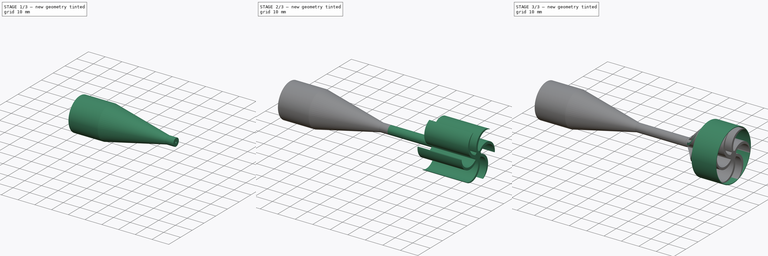
[diagram: build sequence overview — one tinted view per stage of 3, left to right]
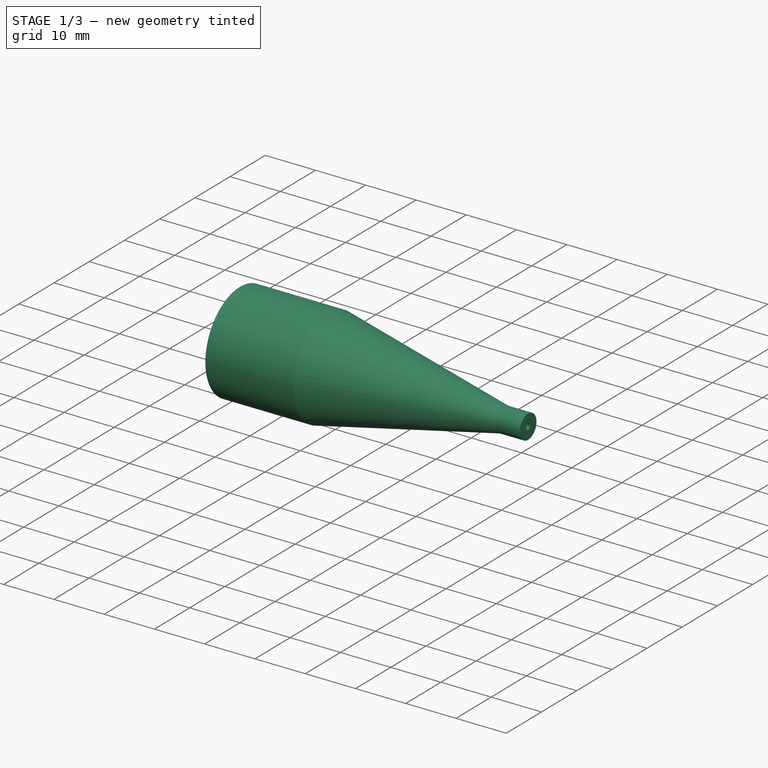
[diagram: stage 1 of 3 — iso view after this stage's code; geometry added in this stage tinted green]
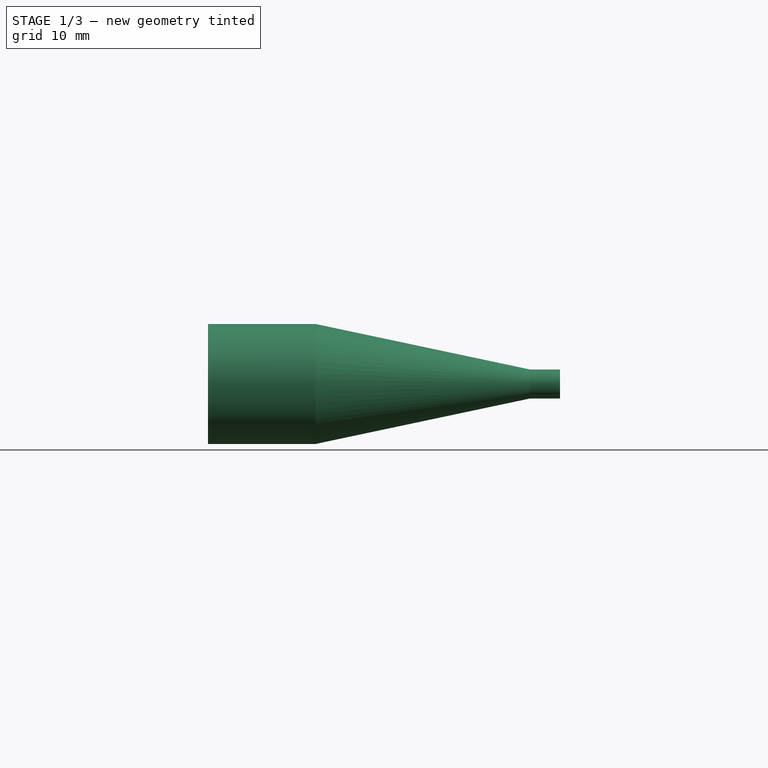
[diagram: stage 1 of 3 — front view after this stage's code; geometry added in this stage tinted green]
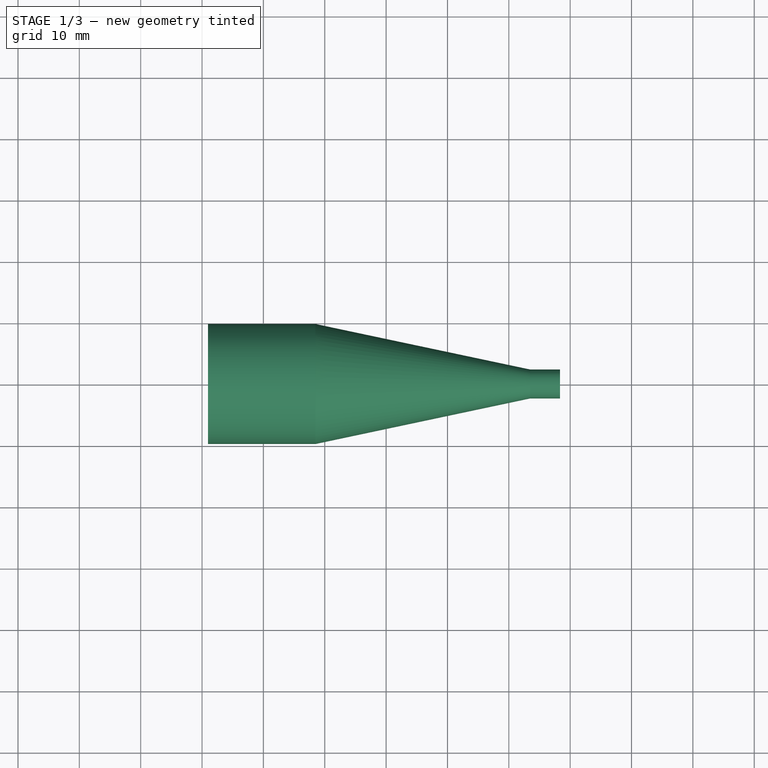
[diagram: stage 1 of 3 — top view after this stage's code; geometry added in this stage tinted green]
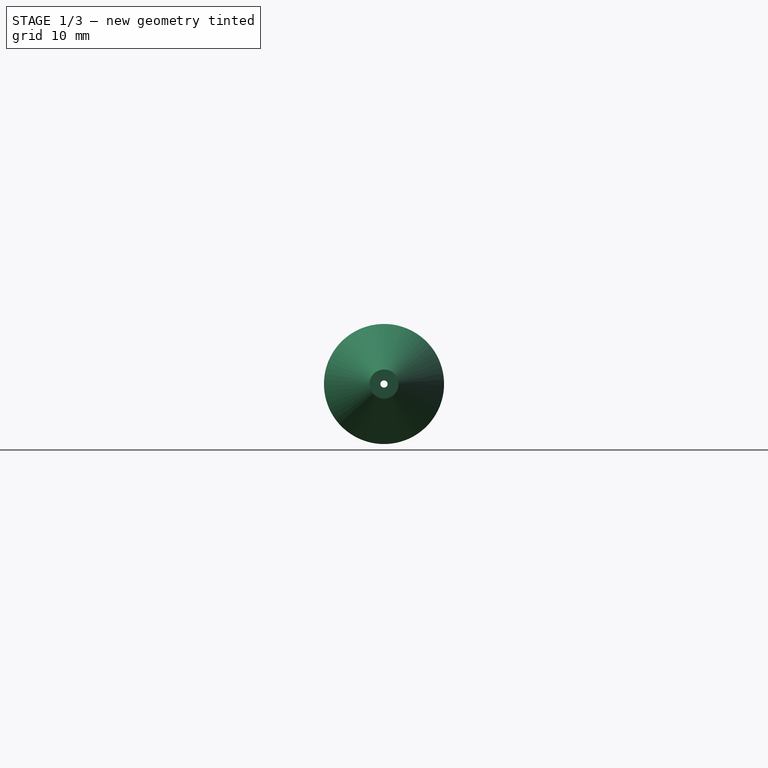
[diagram: stage 1 of 3 — right view after this stage's code; geometry added in this stage tinted green]
FCSTD DOCUMENT  (FreeCAD 0.21R33771 (Git))
Label: vog-17-3
License: All rights reserved
LicenseURL: http://en.wikipedia.org/wiki/All_rights_reserved
objects: Sketcher::SketchObject×7, PartDesign::Pad×3, PartDesign::Revolution×1, PartDesign::Pocket×1, PartDesign::PolarPattern×1, PartDesign::Groove×1, PartDesign::Body×1
note: 21 computed .brp shape members not serialized (recipe doc carries the construction recipe); baked Part::Feature solids carry a one-line shape summary decoded from their .brp

FEATURE [Sketcher::SketchObject] Sketch
  AttachmentOffset = pos=(0,-11,0) rot=(0,0,1;0rad)
  FullyConstrained = false
  MapMode = 5
  Placement = pos=(0,2.4e-15,-11) rot=(1,0,0;1.5708rad)
  Support = -> [XZ_Plane]
  sketch-geometry (14):
    g0: LineSegment StartX=0.972993 StartY=20.7871 StartZ=0 EndX=0.972993 EndY=19.8308 EndZ=0
    g1: LineSegment StartX=0.972993 StartY=19.8308 StartZ=0 EndX=1.39437 EndY=19.8308 EndZ=0
    g2: LineSegment StartX=18.0728 StartY=19.8308 StartZ=0 EndX=19.7165 EndY=17.697 EndZ=0
    g3: LineSegment StartX=0.972993 StartY=20.7871 StartZ=0 EndX=18.4773 EndY=20.7871 EndZ=0
    g4: LineSegment StartX=18.4773 StartY=20.7871 StartZ=0 EndX=53.468 EndY=13.3622 EndZ=0
    g5: LineSegment StartX=53.468 StartY=13.3622 StartZ=0 EndX=58.3387 EndY=13.3622 EndZ=0
    g6: LineSegment StartX=19.7165 StartY=17.697 StartZ=0 EndX=51.4946 EndY=11.5864 EndZ=0
    g7: LineSegment StartX=51.4946 StartY=11.5864 StartZ=0 EndX=58.3387 EndY=11.5864 EndZ=0
    g8: LineSegment StartX=58.3387 StartY=11.5864 StartZ=0 EndX=58.3387 EndY=13.3622 EndZ=0
    g9: LineSegment StartX=1.39437 StartY=19.8308 StartZ=0 EndX=1.39437 EndY=18.5154 EndZ=0
    g10: LineSegment StartX=1.39437 StartY=18.5154 StartZ=0 EndX=1.56067 EndY=18.5154 EndZ=0
    g11: LineSegment StartX=1.56067 StartY=18.5154 StartZ=0 EndX=2.06071 EndY=19.2246 EndZ=0
    g12: LineSegment StartX=2.06071 StartY=19.2246 StartZ=0 EndX=2.06071 EndY=19.8308 EndZ=0
    g13: LineSegment StartX=2.06071 StartY=19.8308 StartZ=0 EndX=18.0728 EndY=19.8308 EndZ=0
  constraints (23):
    c: Coincident(g1,g0)
    c: Horizontal(g1)
    c: Coincident(g2,g13)
    c: Coincident(g3,g0)
    c: Horizontal(g3)
    c: Vertical(g0)
    c: Horizontal(g5)
    c: Coincident(g6,g2)
    c: Coincident(g7,g6)
    c: Horizontal(g7)
    c: Coincident(g5,g8)
    c: Vertical(g8)
    c: Vertical(g9)
    c: Horizontal(g10)
    c: Coincident(g11,g10)
    c: Coincident(g9,g10)
    c: Coincident(g11,g12)
    c: Vertical(g12)
    c: Coincident(g1,g9)
    c: Coincident(g13,g12)
    c: Coincident(g7,g8)
    c: Coincident(g5,g4)
    c: Coincident(g3,g4)
FEATURE [PartDesign::Revolution] Revolution
  Angle = 360
  Axis = (1,0,0)
  Base = (0,0,0)
  Placement = pos=(0,0,0) rot=(1,0,0;1.5708rad)
  Profile = -> Sketch
  ReferenceAxis = -> X_Axis
  Refine = true
FEATURE [Sketcher::SketchObject] Sketch001
  FullyConstrained = false
  MapMode = 5
  Placement = pos=(1.39437,0,0) rot=(0.707107,0,-0.707107;3.14159rad)
  Support = -> [Revolution]
  sketch-geometry (7):
    g0: ArcOfCircle CenterX=0 CenterY=0 CenterZ=0 NormalX=0 NormalY=0 NormalZ=1 AngleXU=0 Radius=8.79099 StartAngle=1.43319 EndAngle=1.7084
    g1: LineSegment StartX=-1.20584 StartY=-8.7079 StartZ=0 EndX=-1.20584 EndY=8.7079 EndZ=0
    g2: LineSegment StartX=-1.20584 StartY=8.7079 StartZ=0 EndX=1.20584 EndY=8.7079 EndZ=0
    g3: LineSegment StartX=1.20584 StartY=8.7079 StartZ=0 EndX=1.20584 EndY=-8.7079 EndZ=0
    g4: LineSegment StartX=1.20584 StartY=-8.7079 StartZ=0 EndX=-1.20584 EndY=-8.7079 EndZ=0
    g5: GeomPoint X=0 Y=0 Z=0
    g6: ArcOfCircle CenterX=0 CenterY=0 CenterZ=0 NormalX=0 NormalY=0 NormalZ=1 AngleXU=0 Radius=8.79099 StartAngle=4.57479 EndAngle=4.84999
  constraints (16):
    c: Coincident(g0,g-1)
    c: Coincident(g1,g2)
    c: Coincident(g2,g3)
    c: Coincident(g3,g4)
    c: Coincident(g4,g1)
    c: Horizontal(g2)
    c: Horizontal(g4)
    c: Vertical(g1)
    c: Vertical(g3)
    c: Symmetric(g2,g1,g5)
    c: Coincident(g5,g0)
    c: Coincident(g6,g3)
    c: Coincident(g0,g2)
    c: PointOnObject(g0,g1)
    c: PointOnObject(g6,g1)
    c: Coincident(g0,g6)
FEATURE [PartDesign::Pocket] Pocket
  BaseFeature = -> Revolution
  Direction = (1,0,2e-16)
  Length = 5
  Length2 = 5
  Placement = pos=(0,0,0) rot=(1,0,0;1.5708rad)
  Profile = -> Sketch001
  ReferenceAxis = -> Sketch001 [N_Axis]
  Refine = true
  Type = 0
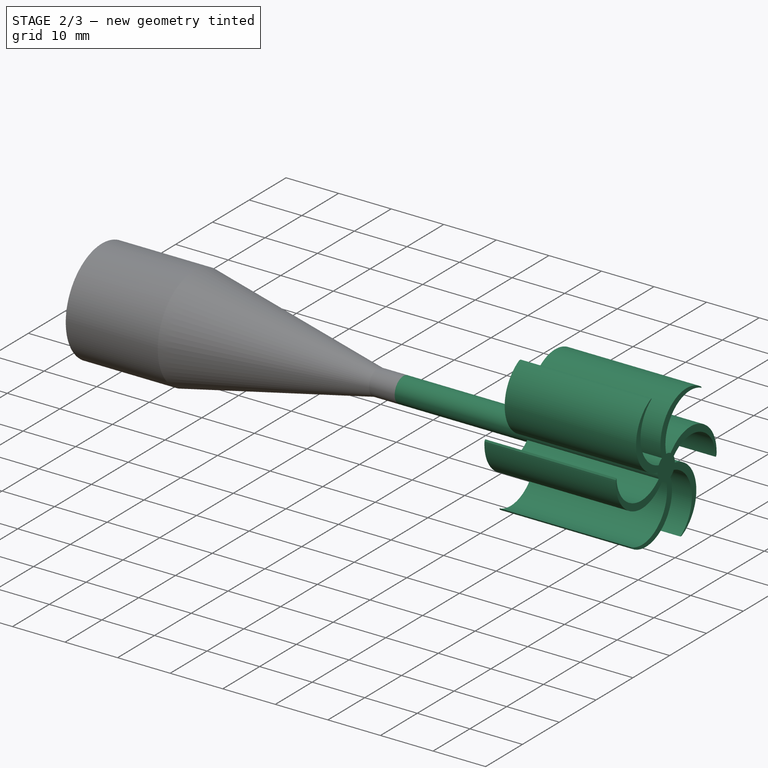
[diagram: stage 2 of 3 — iso view after this stage's code; geometry added in this stage tinted green]
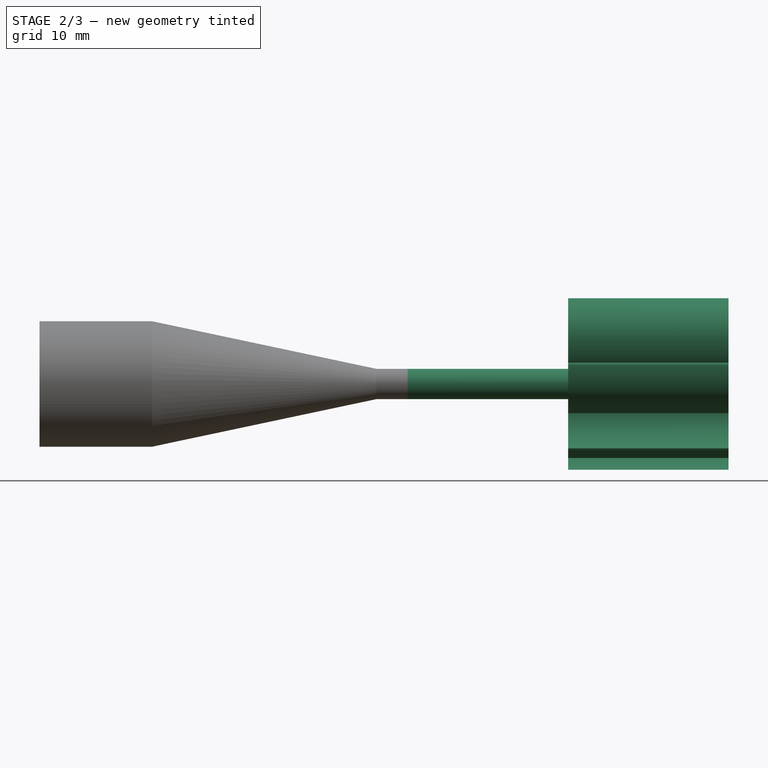
[diagram: stage 2 of 3 — front view after this stage's code; geometry added in this stage tinted green]
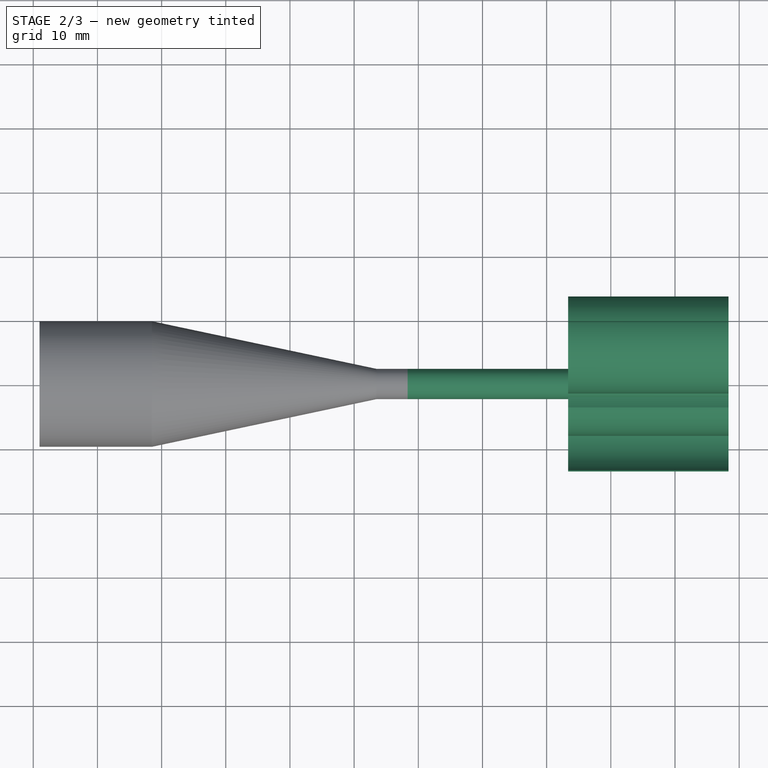
[diagram: stage 2 of 3 — top view after this stage's code; geometry added in this stage tinted green]
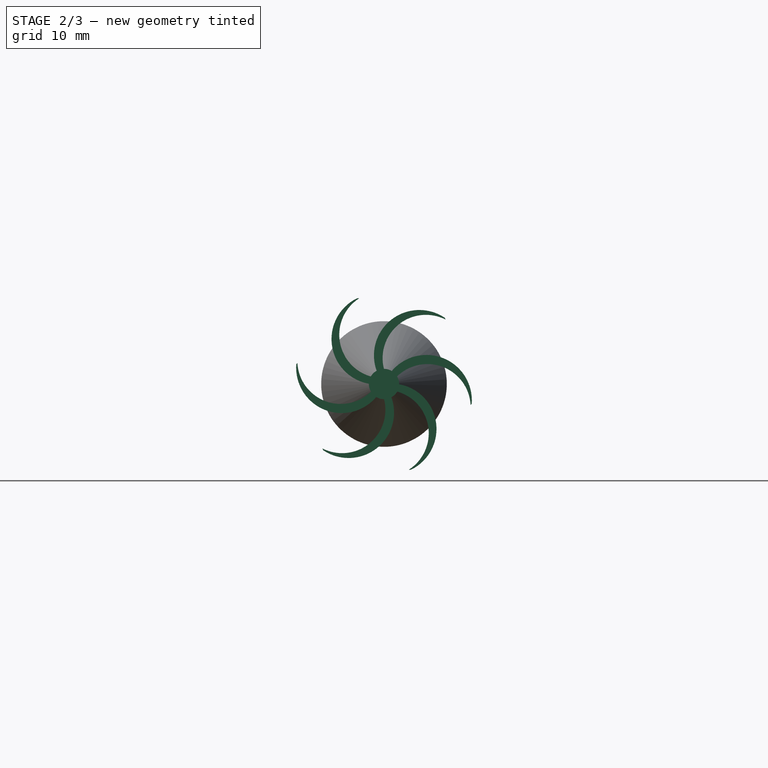
[diagram: stage 2 of 3 — right view after this stage's code; geometry added in this stage tinted green]
FEATURE [Sketcher::SketchObject] Sketch002
  FullyConstrained = true
  MapMode = 5
  Support = -> [XY_Plane]
FEATURE [Sketcher::SketchObject] Sketch003
  FullyConstrained = false
  MapMode = 5
  Placement = pos=(58.3387,0,0) rot=(0.707107,0,0.707107;3.14159rad)
  Support = -> [Pocket]
  sketch-geometry (2):
    g0: GeomPoint X=0 Y=0 Z=0
    g1: Circle CenterX=0 CenterY=0 CenterZ=0 NormalX=0 NormalY=0 NormalZ=1 AngleXU=0 Radius=2.35684
  constraints (2):
    c: Coincident(g0,g-1)
    c: Coincident(g1,g0)
FEATURE [PartDesign::Pad] Pad
  BaseFeature = -> Pocket
  Direction = (1,0,-2e-16)
  Length = 50
  Length2 = 10
  Placement = pos=(0,0,0) rot=(1,0,0;1.5708rad)
  Profile = -> Sketch003
  ReferenceAxis = -> Sketch003 [N_Axis]
  Refine = true
  Type = 0
FEATURE [Sketcher::SketchObject] Sketch004
  FullyConstrained = false
  MapMode = 5
  Placement = pos=(108.339,0,0) rot=(0.707107,0,0.707107;3.14159rad)
  Support = -> [Pad]
  sketch-geometry (4):
    g0: ArcOfCircle CenterX=6.99822 CenterY=1.10471 CenterZ=0 NormalX=0 NormalY=0 NormalZ=1 AngleXU=0 Radius=7.07273 StartAngle=0.454516 EndAngle=2.99631
    g1: ArcOfCircle CenterX=7.6723 CenterY=0.221515 CenterZ=0 NormalX=0 NormalY=0 NormalZ=1 AngleXU=0 Radius=6.74943 StartAngle=0.570488 EndAngle=3.18137
    g2: LineSegment StartX=0.928212 StartY=-0.0469025 StartZ=0 EndX=9e-16 EndY=2.12865 EndZ=0
    g3: LineSegment StartX=13.3529 StartY=4.20983 StartZ=0 EndX=13.3529 EndY=3.86649 EndZ=0
  constraints (6):
    c: PointOnObject(g0,g-2)
    c: Coincident(g2,g1)
    c: Coincident(g2,g0)
    c: Vertical(g3)
    c: Coincident(g0,g3)
    c: Coincident(g1,g3)
FEATURE [PartDesign::Pad] Pad001
  BaseFeature = -> Pad
  Direction = (1,0,-2e-16)
  Length = 25
  Length2 = 10
  Placement = pos=(0,0,0) rot=(1,0,0;1.5708rad)
  Profile = -> Sketch004
  ReferenceAxis = -> Sketch004 [N_Axis]
  Refine = true
  Reversed = true
  Type = 0
FEATURE [PartDesign::PolarPattern] PolarPattern
  Angle = 360
  Axis = -> Sketch004 [N_Axis]
  BaseFeature = -> Pad001
  Occurrences = 6
  Originals = -> [Pad001]
  Placement = pos=(0,0,0) rot=(1,0,0;1.5708rad)
  Refine = true
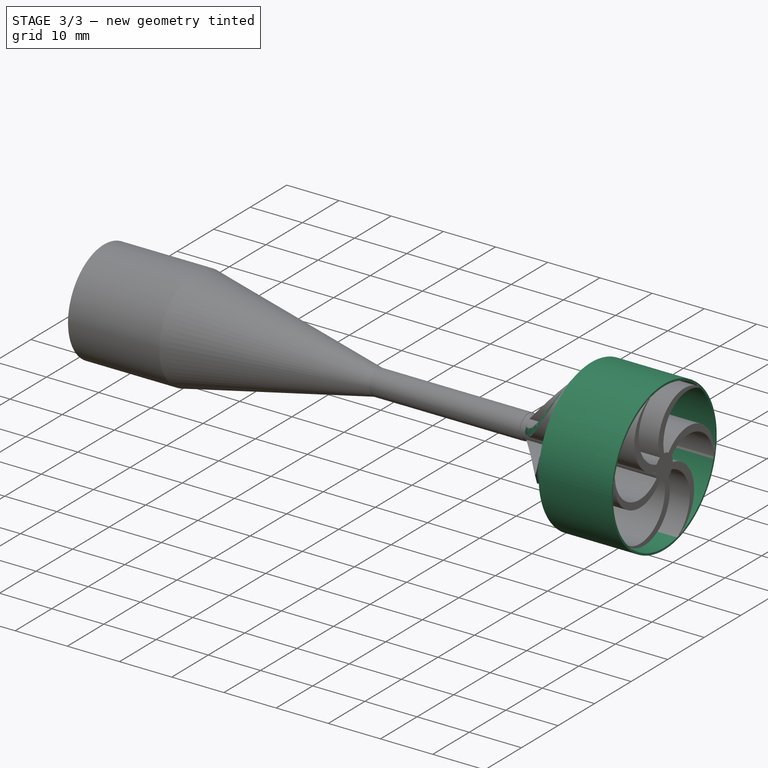
[diagram: stage 3 of 3 — iso view after this stage's code; geometry added in this stage tinted green]
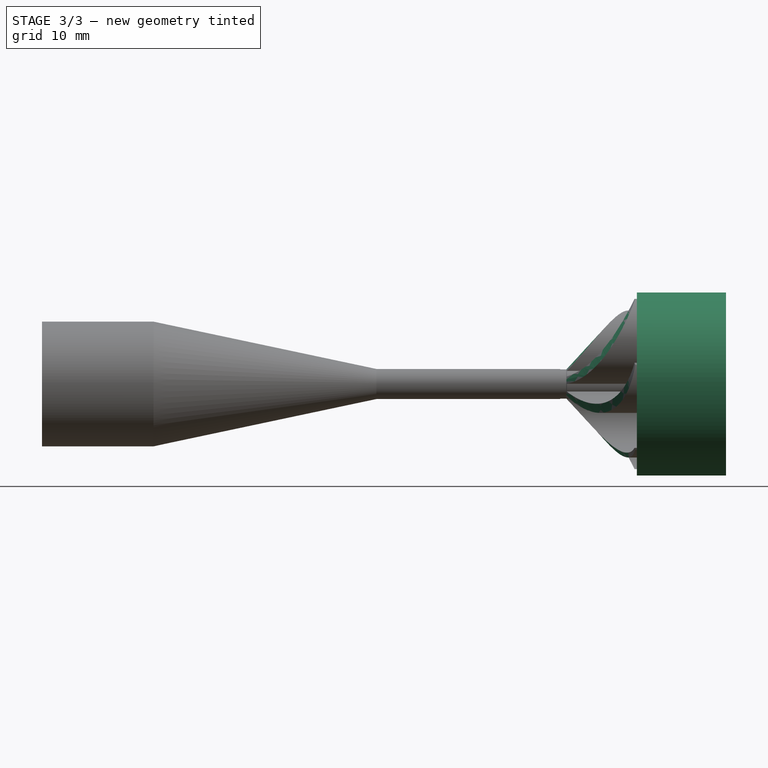
[diagram: stage 3 of 3 — front view after this stage's code; geometry added in this stage tinted green]
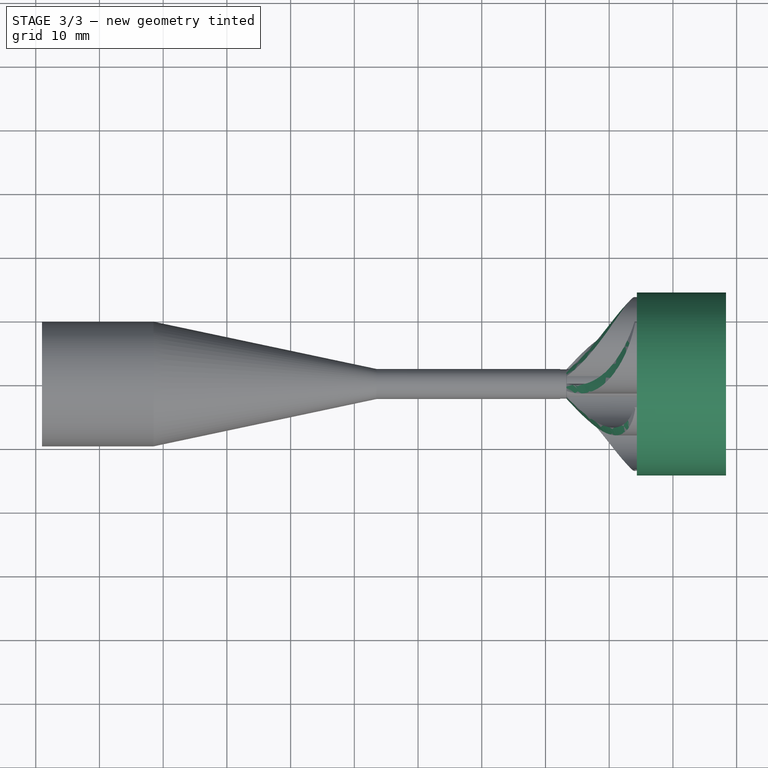
[diagram: stage 3 of 3 — top view after this stage's code; geometry added in this stage tinted green]
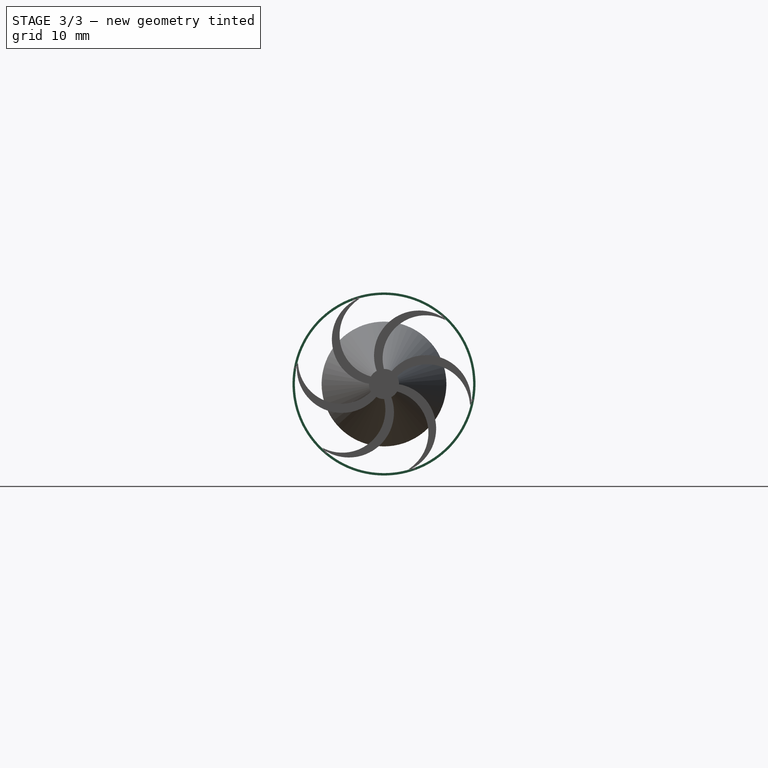
[diagram: stage 3 of 3 — right view after this stage's code; geometry added in this stage tinted green]
FEATURE [Sketcher::SketchObject] Sketch005
  FullyConstrained = false
  MapMode = 5
  Placement = pos=(0,0,0) rot=(1,0,0;1.5708rad)
  Support = -> [XZ_Plane]
  sketch-geometry (4):
    g0: LineSegment StartX=83.276 StartY=2.28707 StartZ=0 EndX=94.8214 EndY=14.8228 EndZ=0
    g1: LineSegment StartX=82.3036 StartY=14.8228 StartZ=0 EndX=94.8214 EndY=14.8228 EndZ=0
    g2: LineSegment StartX=82.3036 StartY=14.8228 StartZ=0 EndX=82.3036 EndY=2.28707 EndZ=0
    g3: LineSegment StartX=82.3036 StartY=2.28707 StartZ=0 EndX=83.276 EndY=2.28707 EndZ=0
  constraints (7):
    c: Coincident(g1,g0)
    c: Horizontal(g1)
    c: Coincident(g2,g1)
    c: Vertical(g2)
    c: Coincident(g3,g2)
    c: Coincident(g3,g0)
    c: Horizontal(g3)
FEATURE [PartDesign::Groove] Groove
  Angle = 360
  Axis = (1,0,0)
  Base = (0,0,0)
  BaseFeature = -> PolarPattern
  Placement = pos=(0,0,0) rot=(1,0,0;1.5708rad)
  Profile = -> Sketch005
  ReferenceAxis = -> X_Axis
  Refine = true
  Reversed = true
FEATURE [Sketcher::SketchObject] Sketch006
  FullyConstrained = false
  MapMode = 5
  Placement = pos=(108.339,0,0) rot=(0.707107,0,0.707107;3.14159rad)
  Support = -> [Groove]
  sketch-geometry (2):
    g0: Circle CenterX=0 CenterY=0 CenterZ=0 NormalX=0 NormalY=0 NormalZ=1 AngleXU=0 Radius=13.9852
    g1: Circle CenterX=0 CenterY=0 CenterZ=0 NormalX=0 NormalY=0 NormalZ=1 AngleXU=0 Radius=14.3621
  constraints (2):
    c: Coincident(g0,g-1)
    c: Coincident(g1,g0)
FEATURE [PartDesign::Pad] Pad002
  BaseFeature = -> Groove
  Direction = (1,0,-2e-16)
  Length = 14
  Length2 = 10
  Placement = pos=(0,0,0) rot=(1,0,0;1.5708rad)
  Profile = -> Sketch006
  ReferenceAxis = -> Sketch006 [N_Axis]
  Refine = true
  Reversed = true
  Type = 0
FEATURE [PartDesign::Body] Body
  Group = -> [Sketch,Revolution,Sketch001,Pocket,Sketch002,Sketch003,Pad,Sketch004,Pad001,PolarPattern,Sketch005,Groove,Sketch006,Pad002]
  Origin = -> Origin
  Tip = -> Pad002
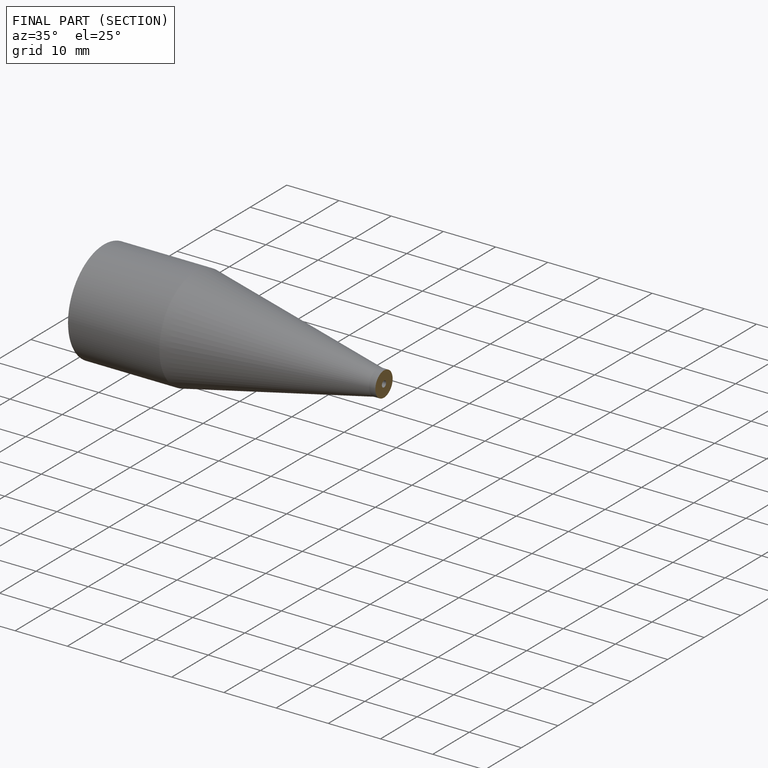
[diagram: finished part — half-section view (interior)]
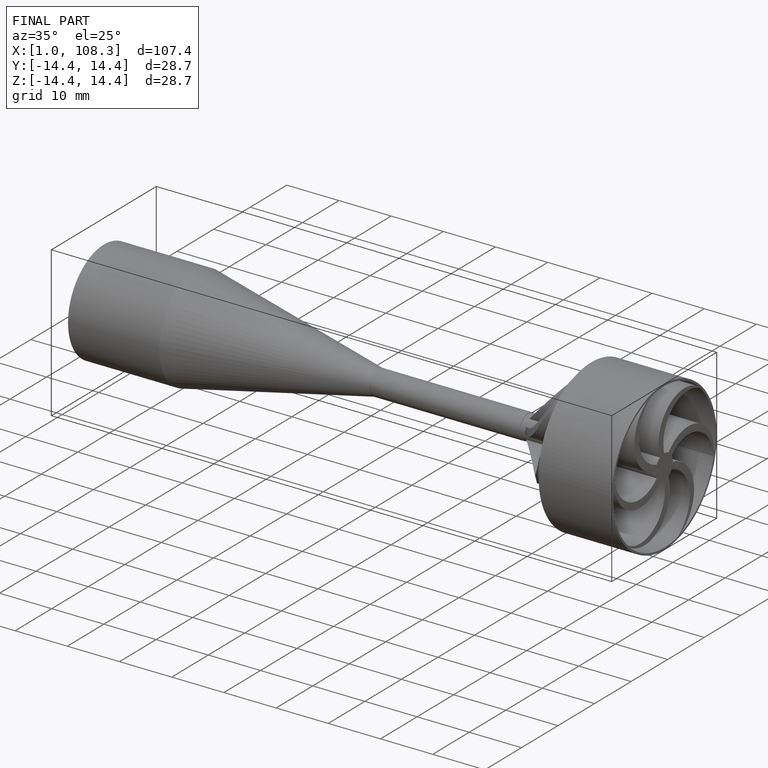
[diagram: finished part — iso view with bounding-box wireframe]
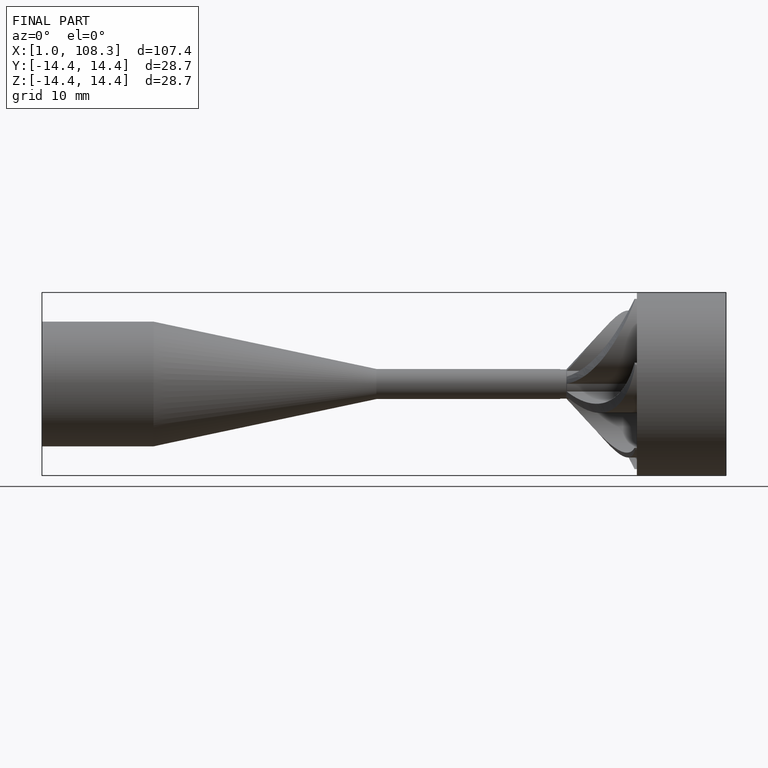
[diagram: finished part — front view with bounding-box wireframe]
